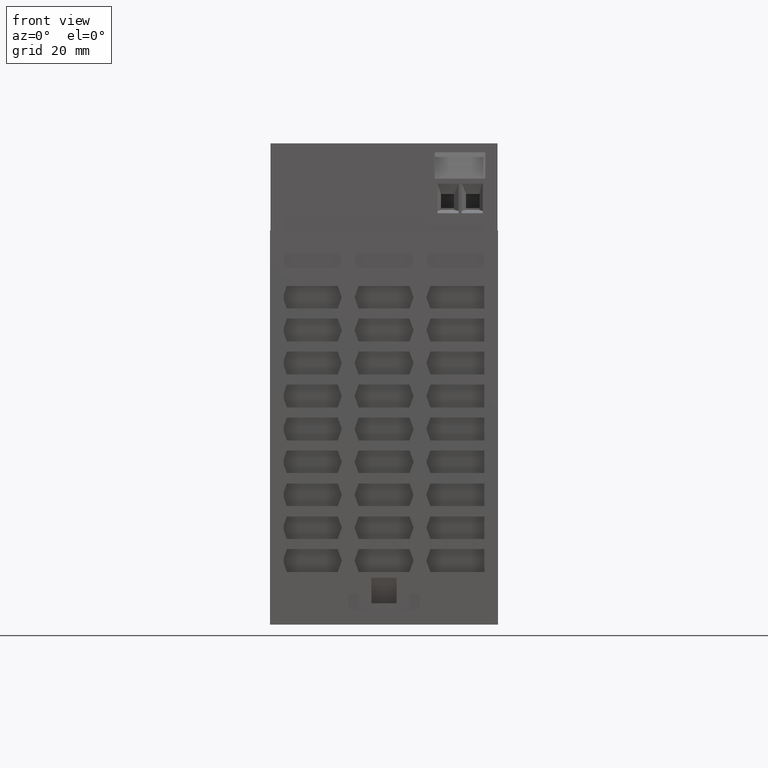
[diagram: clean part render]
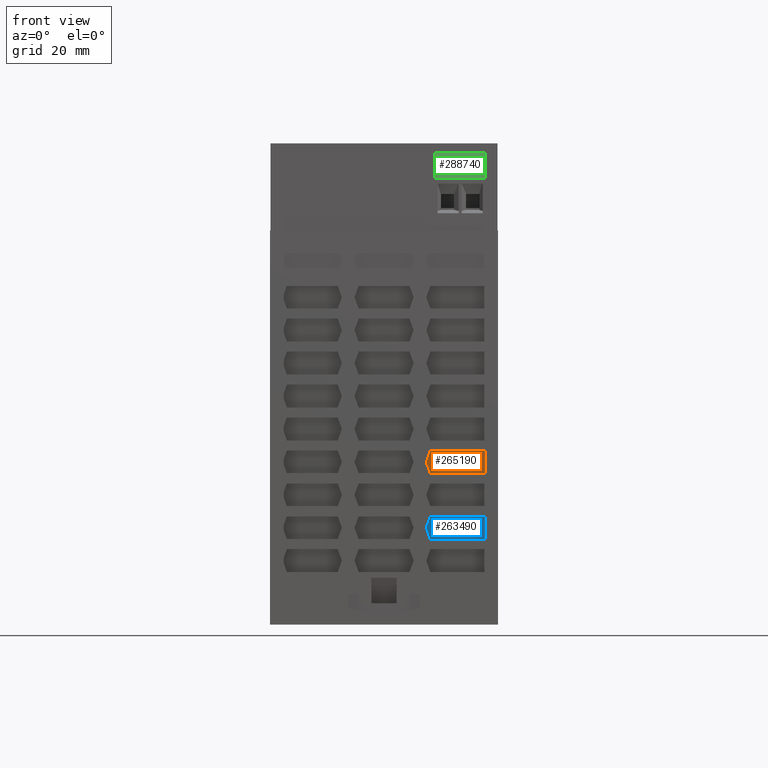
[diagram: same view with three faces highlighted in distinct colors, each labeled with its STEP entity id]
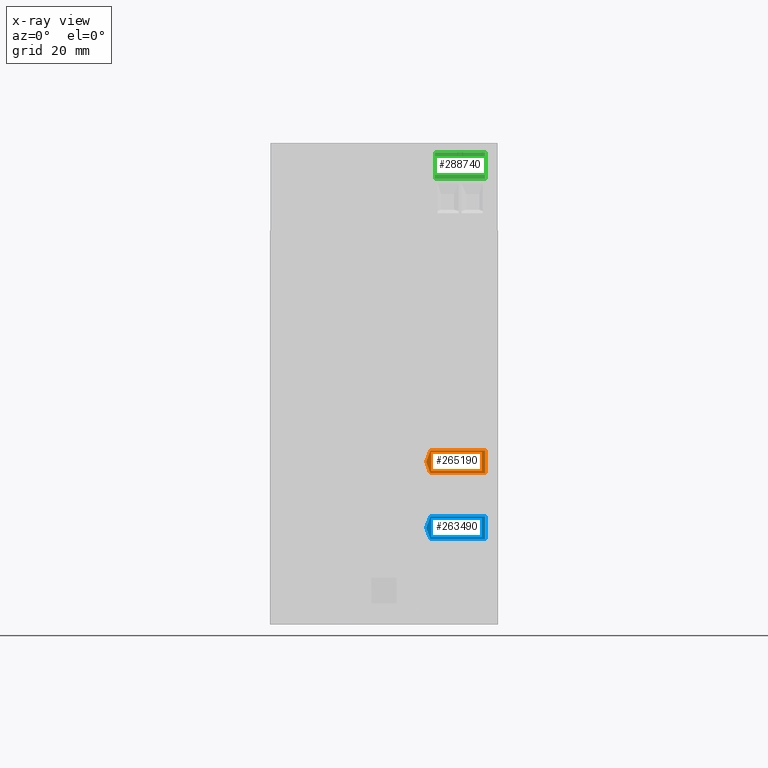
[diagram: x-ray of the same camera — body ghosted, the three highlighted faces saturated]
A machine part, front view with three faces highlighted in distinct colors.
The next image is the same camera in x-ray (body ghosted, the three faces saturated) — at least one of them is partly hidden behind the body in this view.
Their STEP definitions:

[orange] entity #265190 — the highlighted planar face has unit normal (-0, 1, 0.0087).
#88510=CARTESIAN_POINT('',(29.83487880955,71.8,-47.6));
#88520=DIRECTION('',(-0.,0.00872653549837375,0.999961923064171));
#88530=DIRECTION('',(1.,0.,0.));
#88540=AXIS2_PLACEMENT_3D('',#88510,#88520,#88530);
#88550=PLANE('',#88540);
#264770=CARTESIAN_POINT('',(-13.5,71.8,-47.6));
#264780=DIRECTION('',(0.,-0.999961923064171,0.00872653549837375));
#264790=VECTOR('',#264780,1.);
#264800=LINE('',#264770,#264790);
#264810=CARTESIAN_POINT('',(-13.5,28.35,-47.2208175944916));
#264820=VERTEX_POINT('',#264810);
#264830=CARTESIAN_POINT('',(-13.5,23.85,-47.1815466894331));
#264840=VERTEX_POINT('',#264830);
#264850=EDGE_CURVE('',#264820,#264840,#264800,.T.);
#264860=ORIENTED_EDGE('',*,*,#264850,.F.);
#264870=CARTESIAN_POINT('',(0.,23.85,-47.1815466894332));
#264880=DIRECTION('',(1.,0.,0.));
#264890=VECTOR('',#264880,1.);
#264900=LINE('',#264870,#264890);
#264910=CARTESIAN_POINT('',(-2.652266360432,23.85,-47.1815466894332));
#264920=VERTEX_POINT('',#264910);
#264930=EDGE_CURVE('',#264840,#264920,#264900,.T.);
#264940=ORIENTED_EDGE('',*,*,#264930,.F.);
#264950=CARTESIAN_POINT('',(14.8001063726342,71.8,-47.6));
#264960=DIRECTION('',(0.342008643580674,0.939661025496111,
-0.00820029753763322));
#264970=VECTOR('',#264960,1.);
#264980=LINE('',#264950,#264970);
#264990=CARTESIAN_POINT('',(-1.83333333333296,26.1,-47.2011821419624));
#265000=VERTEX_POINT('',#264990);
#265010=EDGE_CURVE('',#264920,#265000,#264980,.T.);
#265020=ORIENTED_EDGE('',*,*,#265010,.F.);
#265030=CARTESIAN_POINT('',(-18.4667730393001,71.8,-47.6));
#265040=DIRECTION('',(-0.342008643580674,0.939661025496111,
-0.00820029753763322));
#265050=VECTOR('',#265040,1.);
#265060=LINE('',#265030,#265050);
#265070=CARTESIAN_POINT('',(-2.65226636043201,28.35,-47.2208175944916));
#265080=VERTEX_POINT('',#265070);
#265090=EDGE_CURVE('',#265000,#265080,#265060,.T.);
#265100=ORIENTED_EDGE('',*,*,#265090,.F.);
#265110=CARTESIAN_POINT('',(0.,28.35,-47.2208175944916));
#265120=DIRECTION('',(-1.,0.,0.));
#265130=VECTOR('',#265120,1.);
#265140=LINE('',#265110,#265130);
#265150=EDGE_CURVE('',#265080,#264820,#265140,.T.);
#265160=ORIENTED_EDGE('',*,*,#265150,.F.);
#265170=EDGE_LOOP('',(#265160,#265100,#265020,#264940,#264860));
#265180=FACE_OUTER_BOUND('',#265170,.T.);
#265190=ADVANCED_FACE('',(#265180),#88550,.F.);

[blue] entity #263490 — the highlighted planar face has unit normal (-0, 1, 0.0087).
#88510=CARTESIAN_POINT('',(29.83487880955,71.8,-47.6));
#88520=DIRECTION('',(-0.,0.00872653549837375,0.999961923064171));
#88530=DIRECTION('',(1.,0.,0.));
#88540=AXIS2_PLACEMENT_3D('',#88510,#88520,#88530);
#88550=PLANE('',#88540);
#263070=CARTESIAN_POINT('',(0.,10.85,-47.0680974081533));
#263080=DIRECTION('',(1.,0.,0.));
#263090=VECTOR('',#263080,1.);
#263100=LINE('',#263070,#263090);
#263110=CARTESIAN_POINT('',(-13.5,10.85,-47.0680974081533));
#263120=VERTEX_POINT('',#263110);
#263130=CARTESIAN_POINT('',(-2.65226636043201,10.85,-47.0680974081533));
#263140=VERTEX_POINT('',#263130);
#263150=EDGE_CURVE('',#263120,#263140,#263100,.T.);
#263160=ORIENTED_EDGE('',*,*,#263150,.F.);
#263170=CARTESIAN_POINT('',(19.5317194180953,71.8,-47.6));
#263180=DIRECTION('',(0.342008643580674,0.939661025496111,
-0.00820029753763322));
#263190=VECTOR('',#263180,1.);
#263200=LINE('',#263170,#263190);
#263210=CARTESIAN_POINT('',(-1.83333333333299,13.0999999999999,
-47.0877328606825));
#263220=VERTEX_POINT('',#263210);
#263230=EDGE_CURVE('',#263140,#263220,#263200,.T.);
#263240=ORIENTED_EDGE('',*,*,#263230,.F.);
#263250=CARTESIAN_POINT('',(-23.1983860847612,71.8,-47.6));
#263260=DIRECTION('',(-0.342008643580674,0.939661025496111,
-0.00820029753763322));
#263270=VECTOR('',#263260,1.);
#263280=LINE('',#263250,#263270);
#263290=CARTESIAN_POINT('',(-2.65226636043204,15.35,-47.1073683132117));
#263300=VERTEX_POINT('',#263290);
#263310=EDGE_CURVE('',#263220,#263300,#263280,.T.);
#263320=ORIENTED_EDGE('',*,*,#263310,.F.);
#263330=CARTESIAN_POINT('',(0.,15.35,-47.1073683132117));
#263340=DIRECTION('',(-1.,0.,0.));
#263350=VECTOR('',#263340,1.);
#263360=LINE('',#263330,#263350);
#263370=CARTESIAN_POINT('',(-13.5,15.35,-47.1073683132117));
#263380=VERTEX_POINT('',#263370);
#263390=EDGE_CURVE('',#263300,#263380,#263360,.T.);
#263400=ORIENTED_EDGE('',*,*,#263390,.F.);
#263410=CARTESIAN_POINT('',(-13.5,71.8,-47.6));
#263420=DIRECTION('',(0.,-0.999961923064171,0.00872653549837375));
#263430=VECTOR('',#263420,1.);
#263440=LINE('',#263410,#263430);
#263450=EDGE_CURVE('',#263380,#263120,#263440,.T.);
#263460=ORIENTED_EDGE('',*,*,#263450,.F.);
#263470=EDGE_LOOP('',(#263460,#263400,#263320,#263240,#263160));
#263480=FACE_OUTER_BOUND('',#263470,.T.);
#263490=ADVANCED_FACE('',(#263480),#88550,.F.);

[green] entity #288740 — the highlighted planar face has unit normal (-0, 0.9356, -0.3531).
#276410=CARTESIAN_POINT('',(-3.52512200002562,87.2429047102212,
-46.8000000000025));
#276420=VERTEX_POINT('',#276410);
#276450=CARTESIAN_POINT('',(-3.52512200002617,71.8,-52.6275112114037));
#276460=DIRECTION('',(3.29736238313672E-14,0.935601718950804,
0.35305725243408));
#276470=VECTOR('',#276460,1.);
#276480=LINE('',#276450,#276470);
#276490=CARTESIAN_POINT('',(-3.5251220000258,82.0499999999858,
-48.7595866831092));
#276500=VERTEX_POINT('',#276490);
#276510=EDGE_CURVE('',#276500,#276420,#276480,.T.);
#287740=CARTESIAN_POINT('',(-13.499999999999,82.0499999999844,
-48.7595866831092));
#287750=VERTEX_POINT('',#287740);
#287780=CARTESIAN_POINT('',(-13.4999999999975,71.8,-52.6275112114032));
#287790=DIRECTION('',(1.35558231306732E-13,-0.935601718950804,
-0.35305725243408));
#287800=VECTOR('',#287790,1.);
#287810=LINE('',#287780,#287800);
#287820=CARTESIAN_POINT('',(-13.4999999999997,87.2429047102198,
-46.8000000000025));
#287830=VERTEX_POINT('',#287820);
#287840=EDGE_CURVE('',#287830,#287750,#287810,.T.);
#288220=CARTESIAN_POINT('',(1.77635683940025E-14,87.2429047102218,
-46.8000000000025));
#288230=DIRECTION('',(-1.,-1.4547063298995E-13,-2.2204460493145E-16));
#288240=VECTOR('',#288230,1.);
#288250=LINE('',#288220,#288240);
#288260=EDGE_CURVE('',#276420,#287830,#288250,.T.);
#288450=CARTESIAN_POINT('',(8.97500000000103,82.0499999999876,
-48.7595866831092));
#288460=DIRECTION('',(1.,1.44882214786882E-13,2.53252698286487E-28));
#288470=VECTOR('',#288460,1.);
#288480=LINE('',#288450,#288470);
#288490=EDGE_CURVE('',#287750,#276500,#288480,.T.);
#288630=CARTESIAN_POINT('',(16.4500000000134,-3.02912122157089,
-80.864915445945));
#288640=DIRECTION('',(5.11517166792205E-14,-0.35305725243408,
0.935601718950804));
#288650=DIRECTION('',(-1.35552049200006E-13,0.935601718950804,
0.35305725243408));
#288660=AXIS2_PLACEMENT_3D('',#288630,#288640,#288650);
#288670=PLANE('',#288660);
#288680=ORIENTED_EDGE('',*,*,#287840,.F.);
#288690=ORIENTED_EDGE('',*,*,#288490,.F.);
#288700=ORIENTED_EDGE('',*,*,#276510,.F.);
#288710=ORIENTED_EDGE('',*,*,#288260,.F.);
#288720=EDGE_LOOP('',(#288710,#288700,#288690,#288680));
#288730=FACE_OUTER_BOUND('',#288720,.T.);
#288740=ADVANCED_FACE('',(#288730),#288670,.F.);